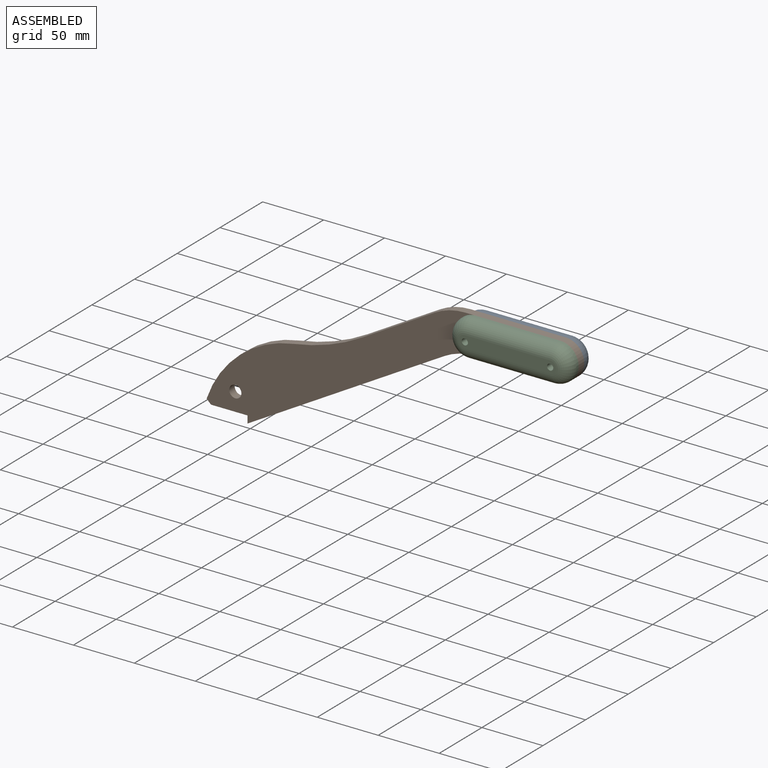
[diagram: assembled view]
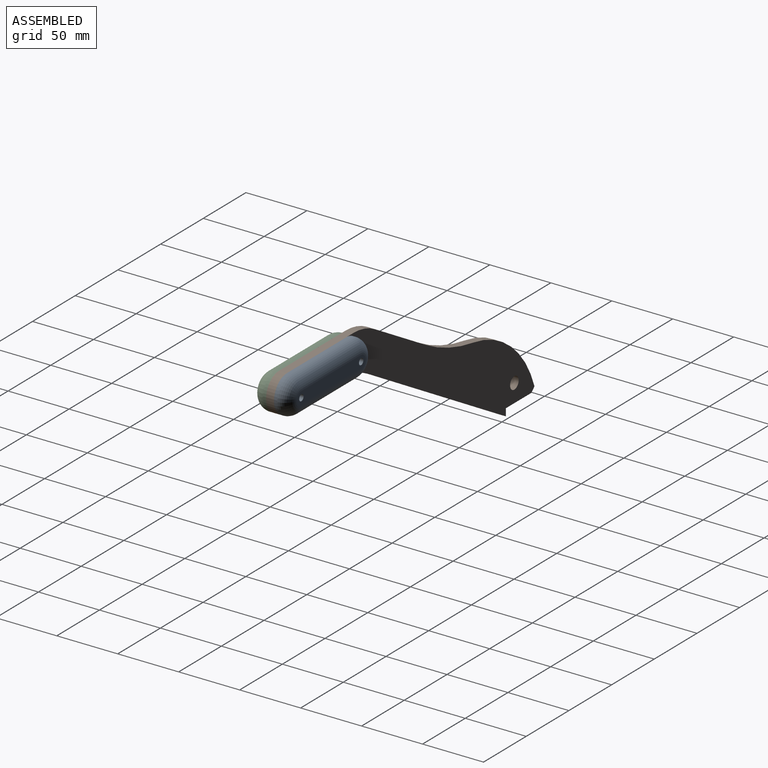
[diagram: assembled view, second angle]
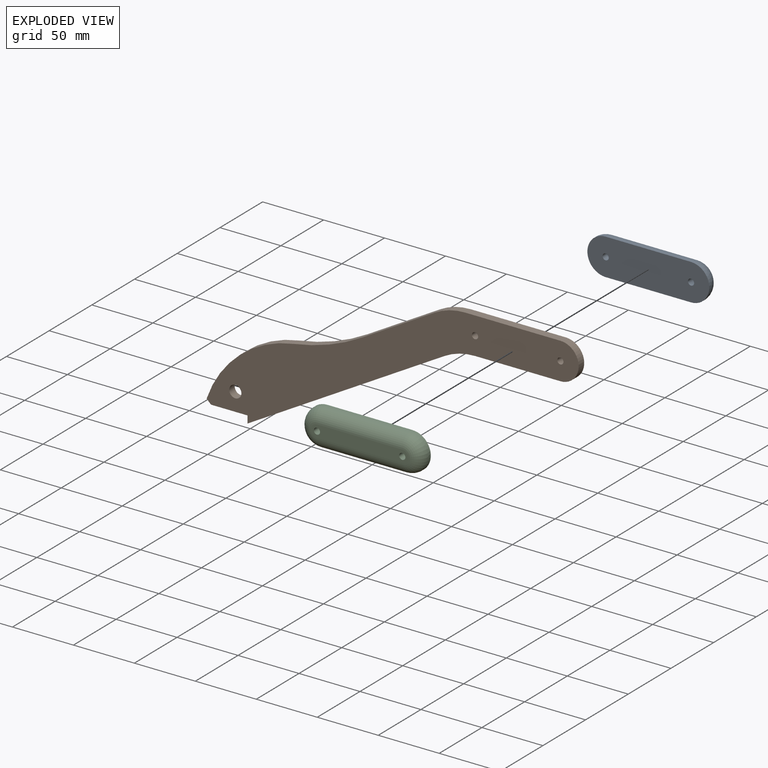
[diagram: exploded view]
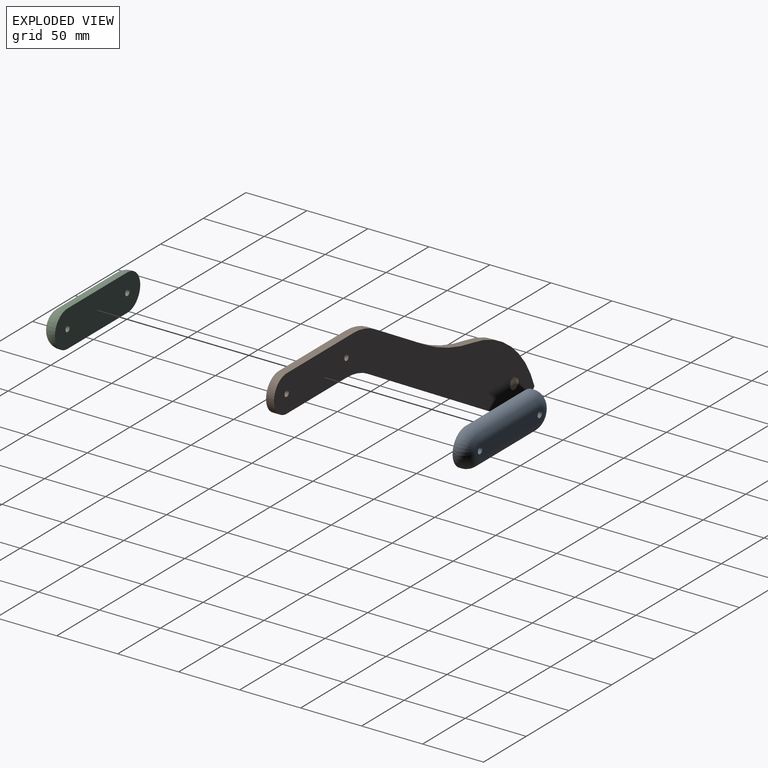
[diagram: exploded view, second angle]
ASSEMBLY  parts=3 mates=2
PART A: 12 faces, bbox 100x12x30 mm
  f0: cylinder r=15mm len=30mm, axis (0,1,0), area 94.2mm2, adj f1,f3,f5,f6
  f1: plane 70x2mm, normal (0,0,1), area 140mm2, adj f0,f2,f5,f7
  f2: cylinder r=15mm len=30mm, axis (0,1,0), area 94.2mm2, adj f1,f3,f5,f9
  f3: plane 70x2mm, normal (0,0,-1), area 140mm2, adj f0,f2,f5,f8
  f4: plane 80x10mm, normal (0,-1,0), area 737.7mm2, adj f6,f7,f8,f9,f10,f11
  f5: plane 100x30mm, normal (0,1,0), area 2766mm2, adj f0,f1,f2,f3,f10,f11
  f6: torus R=5mm, axis (0,-1,0), area 560.9mm2, adj f0,f4,f7,f8
  f7: cylinder r=10mm len=70mm, axis (1,0,0), area 1099.6mm2, adj f1,f4,f6,f9
  f8: cylinder r=10mm len=70mm, axis (-1,0,0), area 1099.6mm2, adj f3,f4,f6,f9
  f9: torus R=5mm, axis (0,-1,0), area 560.9mm2, adj f2,f4,f7,f8
  f10: cylinder r=2.55mm len=12mm, axis (0,1,0), area 192.3mm2, adj f4,f5
  f11: cylinder r=2.55mm len=12mm, axis (0,1,0), area 192.3mm2, adj f4,f5
PART B: 17 faces, bbox 305.1x6.5x130 mm
  f0: plane 6.5x3.54mm, normal (-0.71,0,-0.71), area 32.5mm2, adj f1,f11,f12,f13
  f1: plane 30x6.5mm, normal (0,0,-1), area 195mm2, adj f0,f2,f12,f13
  f2: plane 6.5x6mm, normal (-1,0,0), area 39mm2, adj f1,f3,f12,f13
  f3: plane 161.6x93.3mm, normal (0.5,0,-0.87), area 1212.9mm2, adj f2,f4,f12,f13
  f4: cylinder r=50mm len=25mm, axis (0,1,0), area 170.2mm2, adj f3,f5,f12,f13
  f5: plane 70x6.5mm, normal (0,0,-1), area 455mm2, adj f4,f6,f12,f13
  f6: cylinder r=15mm len=30mm, axis (0,1,0), area 306.3mm2, adj f5,f7,f12,f13
  f7: plane 78.04x6.5mm, normal (0,0,1), area 507.3mm2, adj f6,f8,f12,f13
  f8: cylinder r=50mm len=25mm, axis (0,1,0), area 170.2mm2, adj f7,f9,f12,f13
  f9: plane 59.75x34.5mm, normal (-0.5,0,0.87), area 448.5mm2, adj f8,f10,f12,f13
  f10: cylinder r=160mm len=55.84mm, axis (0,1,0), area 386.9mm2, adj f9,f11,f12,f13
  f11: cylinder r=90mm len=71.51mm, axis (0,1,0), area 636.2mm2, adj f0,f10,f12,f13
  f12: plane 305.14x130mm, normal (0,-1,0), area 10655.5mm2, adj f0,f1,f2,f3,f4,f5,f6,f7
  f13: plane 305.14x130mm, normal (0,1,0), area 10655.5mm2, adj f0,f1,f2,f3,f4,f5,f6,f7
  f14: cylinder r=2.55mm len=6.5mm, axis (0,1,0), area 104.1mm2, adj f12,f13
  f15: cylinder r=2.55mm len=6.5mm, axis (0,1,0), area 104.1mm2, adj f12,f13
  f16: cylinder r=5mm len=10mm, axis (0,1,0), area 204.2mm2, adj f12,f13
PART C: same geometry as A
PLACE A rot(axis=(1,0,0),180deg) t=(221.6,3.25,44)mm
PLACE B t=(0,3.25,-6)mm
PLACE C t=(221.6,-3.25,174)mm
MATE fastened A.f0 <-> B.f6  axis (0,-1,0) through (256.6,3.25,109)mm
MATE fastened C.f0 <-> B.f6  axis (0,1,0) through (256.6,-3.25,109)mm
